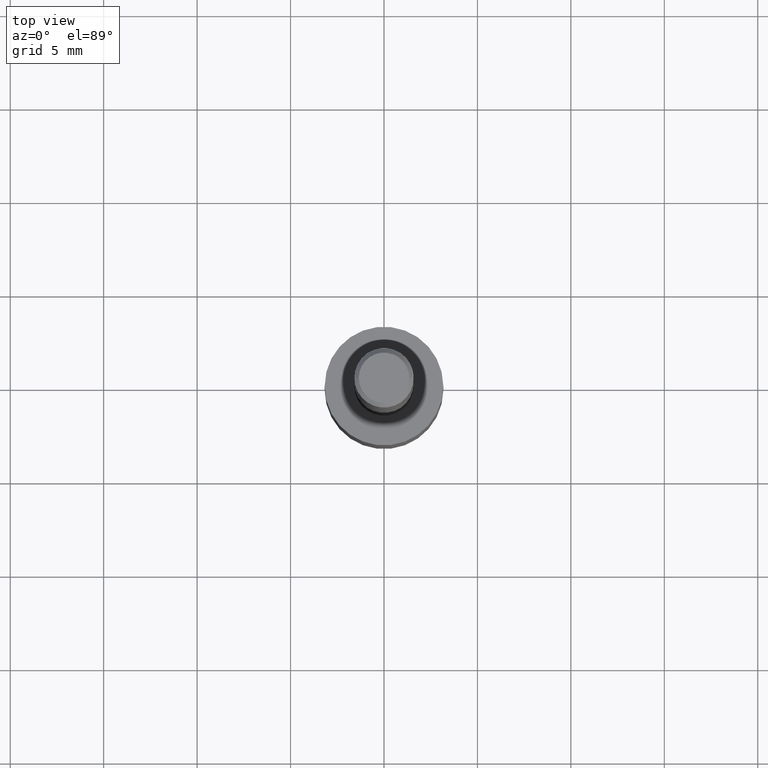
[diagram: clean part render]
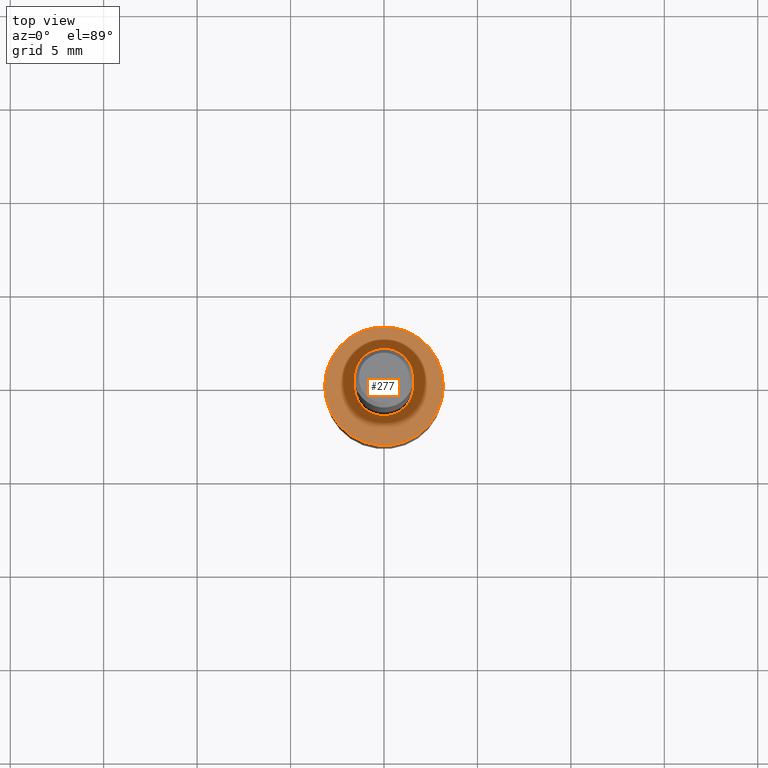
[diagram: same view with one face highlighted and labeled with its STEP entity id]
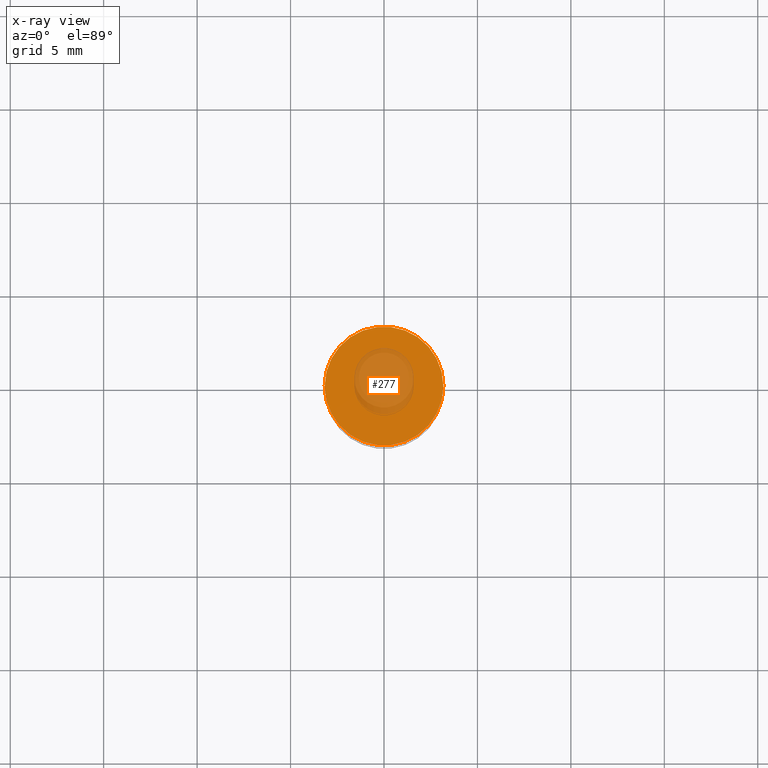
[diagram: x-ray of the same camera — body ghosted, the highlighted face saturated]
A machine part, top view. The second image highlights one B-rep face of the part: STEP entity #277.
The next image is the same camera in x-ray: the body ghosted, the highlighted face saturated — about 29% of this face is hidden behind the body in this view.
In plain terms, the highlighted planar face has unit normal (0, -0, -1).
Its self-contained STEP definition (entity closure, byte-faithful):
#2 = DIRECTION ( 'NONE',  ( -1.000000000000000000, 6.982962677686265922E-15, -4.876176775795935793E-29 ) ) ;
#22 = VERTEX_POINT ( 'NONE', #244 ) ;
#25 = CIRCLE ( 'NONE', #212, 0.1250000000000000000 ) ;
#39 = EDGE_CURVE ( 'NONE', #66, #22, #247, .T. ) ;
#41 = DIRECTION ( 'NONE',  ( 1.000000000000000000, -6.982962677686266711E-15, 0.000000000000000000 ) ) ;
#45 = EDGE_CURVE ( 'NONE', #22, #66, #25, .T. ) ;
#66 = VERTEX_POINT ( 'NONE', #295 ) ;
#85 = PLANE ( 'NONE',  #318 ) ;
#86 = DIRECTION ( 'NONE',  ( -2.445468806185136597E-29, 3.491481338843145583E-15, 1.000000000000000000 ) ) ;
#95 = EDGE_LOOP ( 'NONE', ( #222, #224 ) ) ;
#110 = CARTESIAN_POINT ( 'NONE',  ( 3.208524509419923742E-29, -2.398742141377440690E-15, -1.000000000000000222 ) ) ;
#140 = CARTESIAN_POINT ( 'NONE',  ( 2.445468806185136877E-29, -3.491481338843145977E-15, -1.000000000000000222 ) ) ;
#164 = DIRECTION ( 'NONE',  ( 2.438088387897960049E-29, -3.491481338843145188E-15, -1.000000000000000000 ) ) ;
#191 = DIRECTION ( 'NONE',  ( -2.445468806185136597E-29, 3.491481338843145583E-15, 1.000000000000000000 ) ) ;
#212 = AXIS2_PLACEMENT_3D ( 'NONE', #140, #86, #271 ) ;
#222 = ORIENTED_EDGE ( 'NONE', *, *, #45, .T. ) ;
#224 = ORIENTED_EDGE ( 'NONE', *, *, #39, .T. ) ;
#244 = CARTESIAN_POINT ( 'NONE',  ( 0.1250000000000000000, -4.364351673553929316E-15, -1.000000000000000222 ) ) ;
#247 = CIRCLE ( 'NONE', #311, 0.1250000000000000000 ) ;
#271 = DIRECTION ( 'NONE',  ( 1.000000000000000000, -6.982962677686266711E-15, 0.000000000000000000 ) ) ;
#273 = CARTESIAN_POINT ( 'NONE',  ( 2.445468806185136877E-29, -3.491481338843145977E-15, -1.000000000000000222 ) ) ;
#277 = ADVANCED_FACE ( 'NONE', ( #320 ), #85, .F. ) ;
#295 = CARTESIAN_POINT ( 'NONE',  ( -0.1250000000000000000, -3.374416723440817912E-15, -1.000000000000000222 ) ) ;
#311 = AXIS2_PLACEMENT_3D ( 'NONE', #273, #191, #41 ) ;
#318 = AXIS2_PLACEMENT_3D ( 'NONE', #110, #164, #2 ) ;
#320 = FACE_OUTER_BOUND ( 'NONE', #95, .T. ) ;